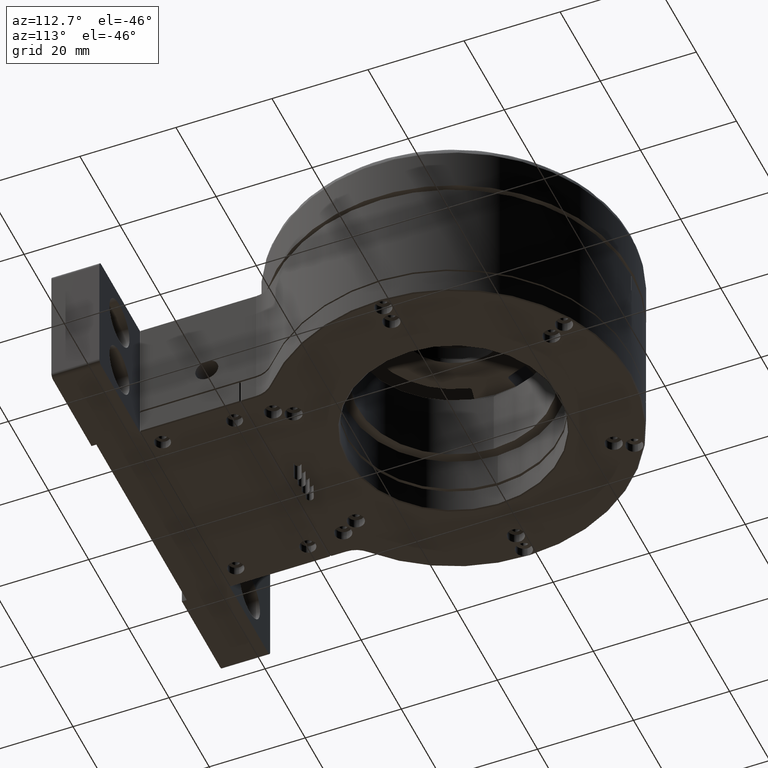
[diagram: clean part render]
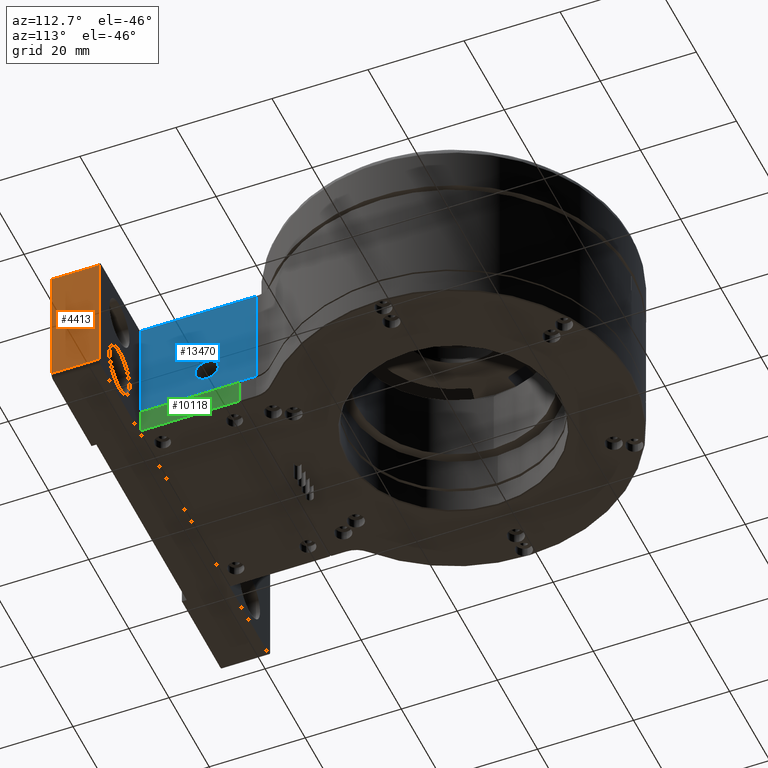
[diagram: same view with three faces highlighted in distinct colors, each labeled with its STEP entity id]
A machine part, auxiliary view with three faces highlighted in distinct colors.
Their STEP definitions:

[orange] entity #4413 — the highlighted planar face has unit normal (-1, 0, 0).
#390 = LINE ( 'NONE', #2310, #10813 ) ;
#510 = ORIENTED_EDGE ( 'NONE', *, *, #12222, .T. ) ;
#724 = VECTOR ( 'NONE', #2684, 1000.000000000000000 ) ;
#1393 = VECTOR ( 'NONE', #4794, 1000.000000000000000 ) ;
#1917 = EDGE_CURVE ( 'NONE', #5382, #11803, #2814, .T. ) ;
#2224 = EDGE_CURVE ( 'NONE', #11803, #7678, #6966, .T. ) ;
#2273 = CARTESIAN_POINT ( 'NONE',  ( 42.50000000000000711, 0.000000000000000000, 1.050000000000000488 ) ) ;
#2310 = CARTESIAN_POINT ( 'NONE',  ( 42.50000000000000711, 0.000000000000000000, 14.04999999999999893 ) ) ;
#2414 = DIRECTION ( 'NONE',  ( -1.000000000000000000, 0.000000000000000000, 0.000000000000000000 ) ) ;
#2481 = CARTESIAN_POINT ( 'NONE',  ( 42.50000000000000711, 0.000000000000000000, 28.04999999999999716 ) ) ;
#2684 = DIRECTION ( 'NONE',  ( -0.000000000000000000, -1.000000000000000000, 0.000000000000000000 ) ) ;
#2814 = LINE ( 'NONE', #12018, #724 ) ;
#2904 = EDGE_CURVE ( 'NONE', #7678, #5494, #5482, .T. ) ;
#3179 = VECTOR ( 'NONE', #8392, 1000.000000000000000 ) ;
#3516 = DIRECTION ( 'NONE',  ( 0.000000000000000000, 0.000000000000000000, 1.000000000000000000 ) ) ;
#3702 = CARTESIAN_POINT ( 'NONE',  ( 42.50000000000000711, -10.00000000000000000, 28.04999999999999716 ) ) ;
#4312 = CARTESIAN_POINT ( 'NONE',  ( 42.50000000000000711, 0.000000000000000000, 27.05000000000000071 ) ) ;
#4379 = CARTESIAN_POINT ( 'NONE',  ( 42.50000000000000711, -10.00000000000000000, 1.050000000000000488 ) ) ;
#4413 = ADVANCED_FACE ( 'NONE', ( #11815 ), #4671, .F. ) ;
#4671 = PLANE ( 'NONE',  #9729 ) ;
#4794 = DIRECTION ( 'NONE',  ( 0.000000000000000000, 0.000000000000000000, 1.000000000000000000 ) ) ;
#5382 = VERTEX_POINT ( 'NONE', #2273 ) ;
#5482 = LINE ( 'NONE', #4312, #3179 ) ;
#5494 = VERTEX_POINT ( 'NONE', #12913 ) ;
#6966 = LINE ( 'NONE', #3702, #1393 ) ;
#7640 = DIRECTION ( 'NONE',  ( -0.000000000000000000, 0.000000000000000000, 1.000000000000000000 ) ) ;
#7678 = VERTEX_POINT ( 'NONE', #11123 ) ;
#8392 = DIRECTION ( 'NONE',  ( 0.000000000000000000, 1.000000000000000000, -0.000000000000000000 ) ) ;
#9662 = ORIENTED_EDGE ( 'NONE', *, *, #2224, .F. ) ;
#9729 = AXIS2_PLACEMENT_3D ( 'NONE', #2481, #2414, #3516 ) ;
#10813 = VECTOR ( 'NONE', #7640, 1000.000000000000000 ) ;
#11061 = ORIENTED_EDGE ( 'NONE', *, *, #2904, .F. ) ;
#11123 = CARTESIAN_POINT ( 'NONE',  ( 42.50000000000000711, -10.00000000000000000, 27.05000000000000071 ) ) ;
#11803 = VERTEX_POINT ( 'NONE', #4379 ) ;
#11815 = FACE_OUTER_BOUND ( 'NONE', #13088, .T. ) ;
#11932 = ORIENTED_EDGE ( 'NONE', *, *, #1917, .F. ) ;
#12018 = CARTESIAN_POINT ( 'NONE',  ( 42.50000000000000711, 0.000000000000000000, 1.050000000000000488 ) ) ;
#12222 = EDGE_CURVE ( 'NONE', #5382, #5494, #390, .T. ) ;
#12913 = CARTESIAN_POINT ( 'NONE',  ( 42.50000000000000711, 0.000000000000000000, 27.05000000000000071 ) ) ;
#13088 = EDGE_LOOP ( 'NONE', ( #11932, #510, #11061, #9662 ) ) ;

[blue] entity #13470 — the highlighted planar face has unit normal (-1, -0, 0).
#69 = CARTESIAN_POINT ( 'NONE',  ( 22.50000000000001066, 0.1999999999999918510, 28.00000000000000000 ) ) ;
#78 = CIRCLE ( 'NONE', #1404, 2.399999999999997691 ) ;
#351 = VERTEX_POINT ( 'NONE', #10730 ) ;
#385 = EDGE_CURVE ( 'NONE', #9058, #6478, #7338, .T. ) ;
#902 = DIRECTION ( 'NONE',  ( -1.000000000000000000, -3.908884574825300925E-16, 0.000000000000000000 ) ) ;
#967 = LINE ( 'NONE', #69, #2978 ) ;
#972 = DIRECTION ( 'NONE',  ( -3.908884574825300925E-16, 1.000000000000000000, -0.000000000000000000 ) ) ;
#1049 = CARTESIAN_POINT ( 'NONE',  ( 22.50000000000000000, 56.00000000000000711, 5.699999999999991296 ) ) ;
#1371 = EDGE_CURVE ( 'NONE', #10875, #3783, #4405, .T. ) ;
#1404 = AXIS2_PLACEMENT_3D ( 'NONE', #13147, #10079, #3817 ) ;
#1637 = EDGE_CURVE ( 'NONE', #3783, #6478, #12428, .T. ) ;
#1802 = FACE_OUTER_BOUND ( 'NONE', #5059, .T. ) ;
#2216 = CARTESIAN_POINT ( 'NONE',  ( 22.50000000000000000, 26.62739371455096915, 27.80000000000002203 ) ) ;
#2347 = EDGE_CURVE ( 'NONE', #351, #351, #78, .T. ) ;
#2978 = VECTOR ( 'NONE', #7202, 1000.000000000000000 ) ;
#3531 = CARTESIAN_POINT ( 'NONE',  ( 22.50000000000001066, 0.1999999999999918510, 27.80000000000002203 ) ) ;
#3783 = VERTEX_POINT ( 'NONE', #10501 ) ;
#3803 = VECTOR ( 'NONE', #10329, 1000.000000000000000 ) ;
#3812 = ORIENTED_EDGE ( 'NONE', *, *, #12445, .F. ) ;
#3817 = DIRECTION ( 'NONE',  ( 0.000000000000000000, 1.000000000000000000, 0.000000000000000000 ) ) ;
#4068 = CARTESIAN_POINT ( 'NONE',  ( 22.50000000000908784, 24.25492164130006145, 27.80000000000419291 ) ) ;
#4405 = LINE ( 'NONE', #1049, #3803 ) ;
#4886 = FACE_BOUND ( 'NONE', #8318, .T. ) ;
#5059 = EDGE_LOOP ( 'NONE', ( #12488, #3812, #12721, #5647 ) ) ;
#5364 = AXIS2_PLACEMENT_3D ( 'NONE', #6118, #902, #12369 ) ;
#5647 = ORIENTED_EDGE ( 'NONE', *, *, #1637, .T. ) ;
#6118 = CARTESIAN_POINT ( 'NONE',  ( 22.50000000000000000, 26.62739371455096915, 28.00000000000000000 ) ) ;
#6368 = CARTESIAN_POINT ( 'NONE',  ( 22.49999999999999289, 24.25492164130006145, 28.00000000000000000 ) ) ;
#6478 = VERTEX_POINT ( 'NONE', #4068 ) ;
#7202 = DIRECTION ( 'NONE',  ( 0.000000000000000000, 0.000000000000000000, 1.000000000000000000 ) ) ;
#7338 = LINE ( 'NONE', #2216, #12951 ) ;
#8318 = EDGE_LOOP ( 'NONE', ( #10681 ) ) ;
#9058 = VERTEX_POINT ( 'NONE', #3531 ) ;
#9168 = PLANE ( 'NONE',  #5364 ) ;
#9891 = VECTOR ( 'NONE', #12968, 1000.000000000000000 ) ;
#10079 = DIRECTION ( 'NONE',  ( 1.000000000000000000, 3.908884574825300925E-16, -0.000000000000000000 ) ) ;
#10329 = DIRECTION ( 'NONE',  ( -1.954442287412525477E-16, 1.000000000000000000, 1.954442287412650216E-16 ) ) ;
#10501 = CARTESIAN_POINT ( 'NONE',  ( 22.50000000000909139, 24.25492164130006145, 5.700000000038971670 ) ) ;
#10681 = ORIENTED_EDGE ( 'NONE', *, *, #2347, .F. ) ;
#10730 = CARTESIAN_POINT ( 'NONE',  ( 22.50000000000000355, 16.39999999999999858, 11.50000000000000178 ) ) ;
#10875 = VERTEX_POINT ( 'NONE', #12718 ) ;
#12369 = DIRECTION ( 'NONE',  ( 3.908884574825300925E-16, -1.000000000000000000, 0.000000000000000000 ) ) ;
#12428 = LINE ( 'NONE', #6368, #9891 ) ;
#12445 = EDGE_CURVE ( 'NONE', #10875, #9058, #967, .T. ) ;
#12488 = ORIENTED_EDGE ( 'NONE', *, *, #385, .F. ) ;
#12718 = CARTESIAN_POINT ( 'NONE',  ( 22.50000000000001066, 0.1999999999999918510, 5.699999999999980638 ) ) ;
#12721 = ORIENTED_EDGE ( 'NONE', *, *, #1371, .T. ) ;
#12951 = VECTOR ( 'NONE', #972, 1000.000000000000000 ) ;
#12968 = DIRECTION ( 'NONE',  ( 0.000000000000000000, 0.000000000000000000, 1.000000000000000000 ) ) ;
#13147 = CARTESIAN_POINT ( 'NONE',  ( 22.50000000000000355, 14.00000000000000000, 11.50000000000000178 ) ) ;
#13470 = ADVANCED_FACE ( 'NONE', ( #1802, #4886 ), #9168, .F. ) ;

[green] entity #10118 — the highlighted planar face has unit normal (-1, 0, 0).
#290 = CARTESIAN_POINT ( 'NONE',  ( 22.50000000000000711, 0.1999999999999970690, 0.2000000000000003164 ) ) ;
#548 = FACE_OUTER_BOUND ( 'NONE', #7824, .T. ) ;
#708 = DIRECTION ( 'NONE',  ( -0.000000000000000000, -1.000000000000000000, -0.000000000000000000 ) ) ;
#1445 = VECTOR ( 'NONE', #8347, 1000.000000000000000 ) ;
#1524 = CARTESIAN_POINT ( 'NONE',  ( 22.50000000000000711, -1.734723475976807094E-15, 5.500000000000001776 ) ) ;
#1556 = DIRECTION ( 'NONE',  ( 0.000000000000000000, 1.000000000000000000, -0.000000000000000000 ) ) ;
#1661 = PLANE ( 'NONE',  #2652 ) ;
#2652 = AXIS2_PLACEMENT_3D ( 'NONE', #1524, #6722, #13230 ) ;
#3475 = VERTEX_POINT ( 'NONE', #12885 ) ;
#3748 = CARTESIAN_POINT ( 'NONE',  ( 22.50000000000000711, -1.734723475976807094E-15, 5.300000000000002487 ) ) ;
#4258 = CARTESIAN_POINT ( 'NONE',  ( 22.50000000000000711, 0.1999999999999970690, 5.500000000000001776 ) ) ;
#5215 = VECTOR ( 'NONE', #1556, 1000.000000000000000 ) ;
#5287 = CARTESIAN_POINT ( 'NONE',  ( 22.50000000000000711, 0.1999999999999953204, 5.300000000000002487 ) ) ;
#5337 = VERTEX_POINT ( 'NONE', #5287 ) ;
#5370 = ORIENTED_EDGE ( 'NONE', *, *, #6431, .F. ) ;
#5670 = VECTOR ( 'NONE', #708, 1000.000000000000000 ) ;
#6422 = EDGE_CURVE ( 'NONE', #5337, #12766, #10906, .T. ) ;
#6431 = EDGE_CURVE ( 'NONE', #3475, #10885, #7970, .T. ) ;
#6722 = DIRECTION ( 'NONE',  ( -1.000000000000000000, 0.000000000000000000, 0.000000000000000000 ) ) ;
#7499 = EDGE_CURVE ( 'NONE', #12766, #3475, #10987, .T. ) ;
#7791 = DIRECTION ( 'NONE',  ( -0.000000000000000000, -0.000000000000000000, -1.000000000000000000 ) ) ;
#7824 = EDGE_LOOP ( 'NONE', ( #9420, #5370, #10845, #13135 ) ) ;
#7970 = LINE ( 'NONE', #12119, #5670 ) ;
#8007 = CARTESIAN_POINT ( 'NONE',  ( 22.50000000000000711, 20.80000000000000426, 5.300000000000002487 ) ) ;
#8347 = DIRECTION ( 'NONE',  ( 0.000000000000000000, 0.000000000000000000, 1.000000000000000000 ) ) ;
#9420 = ORIENTED_EDGE ( 'NONE', *, *, #12466, .F. ) ;
#9964 = CARTESIAN_POINT ( 'NONE',  ( 22.50000000000000711, 20.80000000000000071, 5.500000000000001776 ) ) ;
#10118 = ADVANCED_FACE ( 'NONE', ( #548 ), #1661, .F. ) ;
#10523 = LINE ( 'NONE', #4258, #1445 ) ;
#10845 = ORIENTED_EDGE ( 'NONE', *, *, #7499, .F. ) ;
#10885 = VERTEX_POINT ( 'NONE', #290 ) ;
#10906 = LINE ( 'NONE', #3748, #5215 ) ;
#10987 = LINE ( 'NONE', #9964, #11294 ) ;
#11294 = VECTOR ( 'NONE', #7791, 1000.000000000000000 ) ;
#12119 = CARTESIAN_POINT ( 'NONE',  ( 22.50000000000000711, -1.734723475976807094E-15, 0.2000000000000009548 ) ) ;
#12466 = EDGE_CURVE ( 'NONE', #10885, #5337, #10523, .T. ) ;
#12766 = VERTEX_POINT ( 'NONE', #8007 ) ;
#12885 = CARTESIAN_POINT ( 'NONE',  ( 22.50000000000000711, 20.80000000000000426, 0.1999999999999996503 ) ) ;
#13135 = ORIENTED_EDGE ( 'NONE', *, *, #6422, .F. ) ;
#13230 = DIRECTION ( 'NONE',  ( 0.000000000000000000, 0.000000000000000000, 1.000000000000000000 ) ) ;